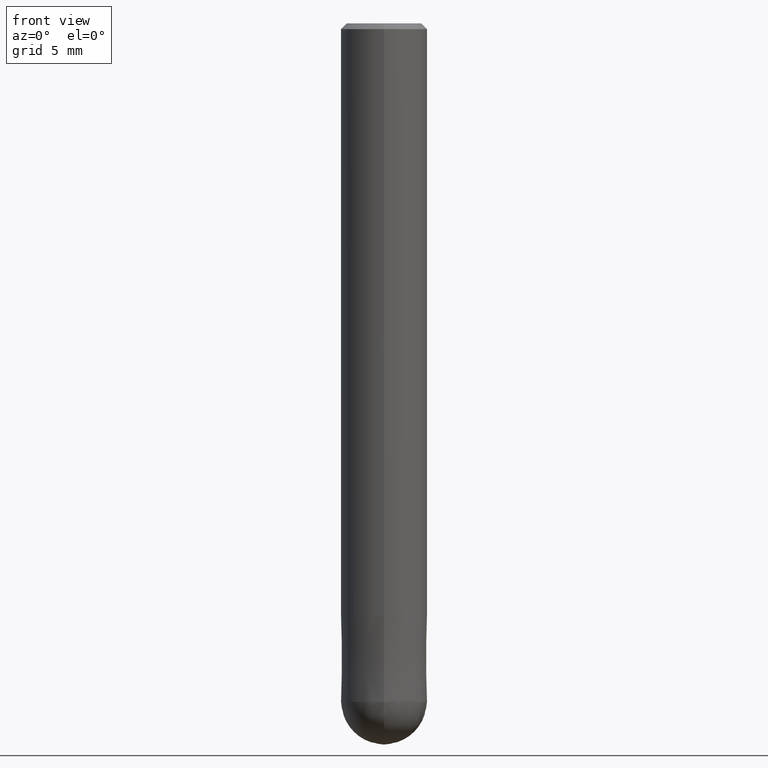
[diagram: clean part render]
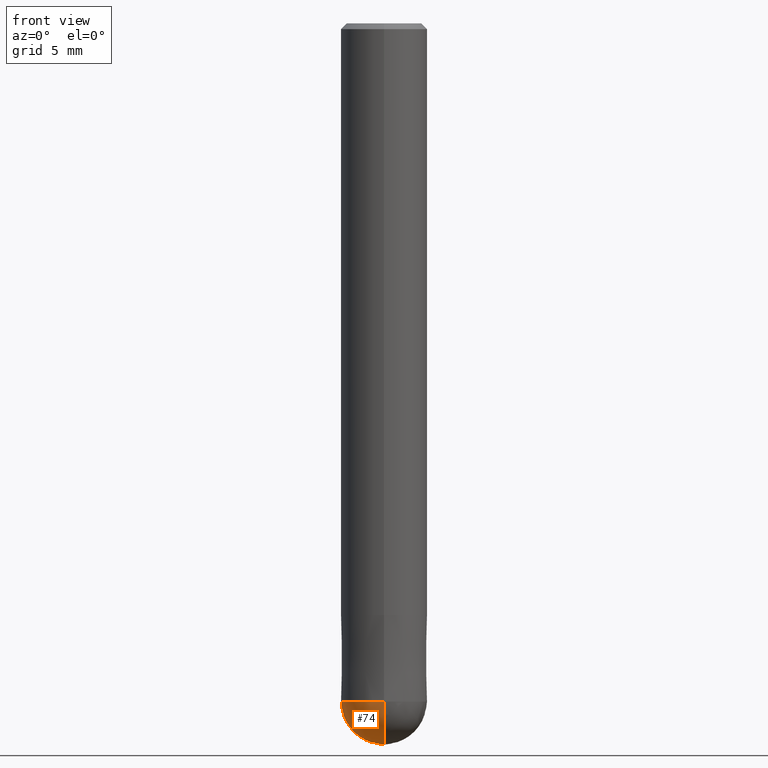
[diagram: same view with one face highlighted and labeled with its STEP entity id]
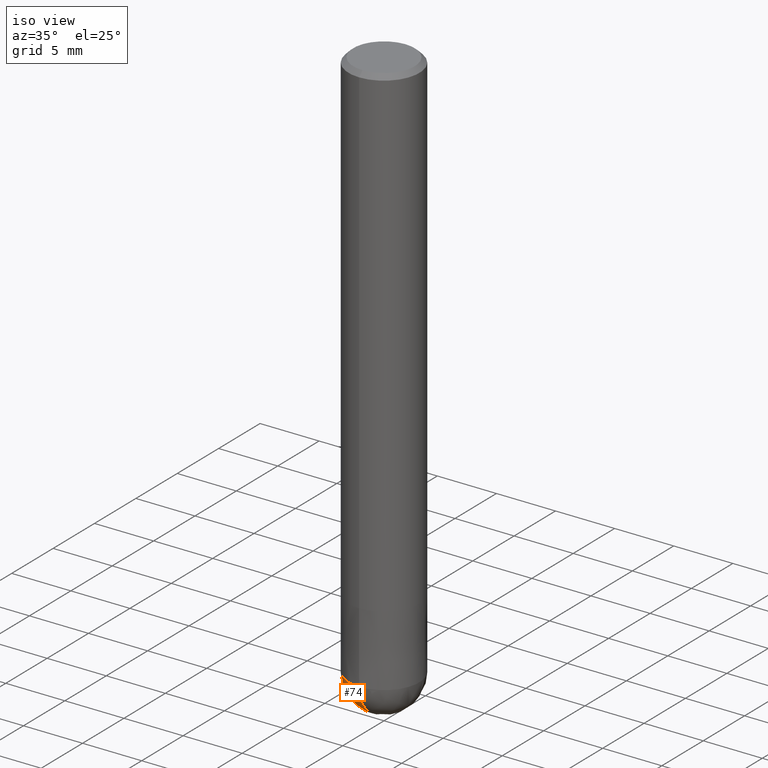
[diagram: same view with one face highlighted and labeled with its STEP entity id]
A machine part, front view. The second image highlights one B-rep face of the part: STEP entity #74.
A second angle (iso view) of the same face is appended — the face is thin or edge-on in the first view.
In plain terms, the highlighted spherical surface has radius 3 mm.
Its self-contained STEP definition (entity closure, byte-faithful):
#62=VERTEX_POINT('',#154);
#74=ADVANCED_FACE('',(#169),#170,.T.);
#114=VERTEX_POINT('',#215);
#120=EDGE_CURVE('',#62,#114,#222,.T.);
#124=EDGE_CURVE('',#62,#114,#226,.T.);
#154=CARTESIAN_POINT('',(3.67381906146713E-016,-3.0,-47.0));
#169=FACE_OUTER_BOUND('',#267,.T.);
#170=SPHERICAL_SURFACE('',#268,3.00000000000001);
#215=CARTESIAN_POINT('',(0.0,3.0,-47.0));
#222=CIRCLE('',#329,3.0);
#226=CIRCLE('',#335,3.00000000000001);
#267=EDGE_LOOP('',(#378,#379));
#268=AXIS2_PLACEMENT_3D('',#380,#381,#382);
#329=AXIS2_PLACEMENT_3D('',#445,#446,#447);
#335=AXIS2_PLACEMENT_3D('',#451,#452,#453);
#378=ORIENTED_EDGE('',*,*,#124,.F.);
#379=ORIENTED_EDGE('',*,*,#120,.T.);
#380=CARTESIAN_POINT('',(0.0,0.0,-47.0));
#381=DIRECTION('',(0.0,1.0,0.0));
#382=DIRECTION('',(0.0,0.0,-1.0));
#445=CARTESIAN_POINT('',(0.0,0.0,-47.0));
#446=DIRECTION('',(0.0,0.0,-1.0));
#447=DIRECTION('',(0.0,1.0,0.0));
#451=CARTESIAN_POINT('',(0.0,0.0,-47.0));
#452=DIRECTION('',(1.0,0.0,1.22460635382238E-016));
#453=DIRECTION('',(-1.22460635382238E-016,0.0,1.0));